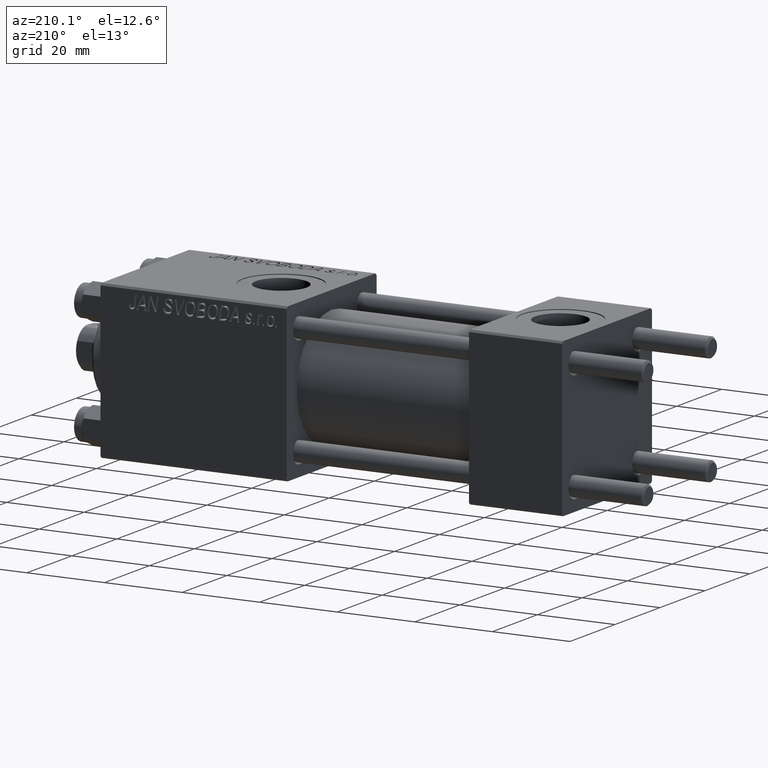
[diagram: clean part render]
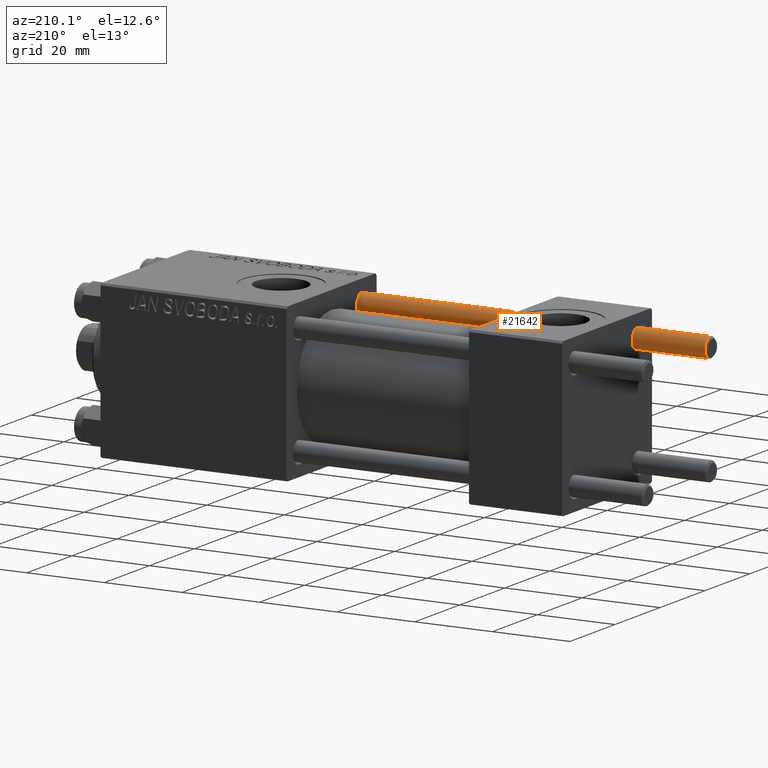
[diagram: same view with one face highlighted and labeled with its STEP entity id]
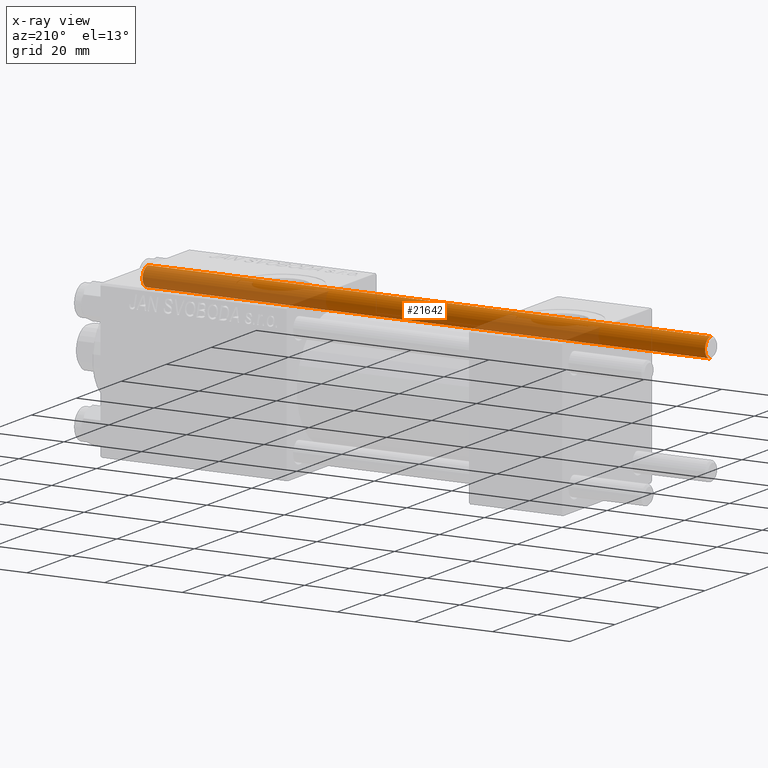
[diagram: x-ray of the same camera — body ghosted, the highlighted face saturated]
A machine part, auxiliary view. The second image highlights one B-rep face of the part: STEP entity #21642.
The next image is the same camera in x-ray: the body ghosted, the highlighted face saturated — about 41% of this face is hidden behind the body in this view.
In plain terms, the highlighted cylindrical surface (edge-blend (fillet) strip) has radius 2.5 mm, axis along (1, -0, 0).
Its self-contained STEP definition (entity closure, byte-faithful):
#357 = DIRECTION ( 'NONE',  ( -0.000000000000000000, -0.000000000000000000, 1.000000000000000000 ) ) ;
#480 = CARTESIAN_POINT ( 'NONE',  ( 2.500000000000000000, 3.061616997868383141E-16, 0.5000000000000559552 ) ) ;
#2121 = AXIS2_PLACEMENT_3D ( 'NONE', #16573, #13295, #32676 ) ;
#6746 = AXIS2_PLACEMENT_3D ( 'NONE', #12002, #35411, #42956 ) ;
#7728 = FACE_OUTER_BOUND ( 'NONE', #10321, .T. ) ;
#8121 = LINE ( 'NONE', #47146, #9843 ) ;
#8482 = ORIENTED_EDGE ( 'NONE', *, *, #48293, .F. ) ;
#9843 = VECTOR ( 'NONE', #24231, 1000.000000000000000 ) ;
#10321 = EDGE_LOOP ( 'NONE', ( #8482, #21373, #24157, #30590 ) ) ;
#12002 = CARTESIAN_POINT ( 'NONE',  ( 0.000000000000000000, 0.000000000000000000, 146.0000000000000000 ) ) ;
#12769 = EDGE_CURVE ( 'NONE', #22203, #38321, #39100, .T. ) ;
#13295 = DIRECTION ( 'NONE',  ( 0.000000000000000000, 0.000000000000000000, -1.000000000000000000 ) ) ;
#15721 = DIRECTION ( 'NONE',  ( 1.000000000000000000, 0.000000000000000000, 0.000000000000000000 ) ) ;
#15973 = DIRECTION ( 'NONE',  ( -0.000000000000000000, -0.000000000000000000, -1.000000000000000000 ) ) ;
#16217 = CARTESIAN_POINT ( 'NONE',  ( -2.500000000000000000, 0.000000000000000000, 146.0000000000000000 ) ) ;
#16573 = CARTESIAN_POINT ( 'NONE',  ( 0.000000000000000000, 0.000000000000000000, 145.5000000000000284 ) ) ;
#16647 = VERTEX_POINT ( 'NONE', #480 ) ;
#19187 = CARTESIAN_POINT ( 'NONE',  ( 2.500000000000000000, 3.061616997868383141E-16, 145.5000000000000284 ) ) ;
#19493 = CARTESIAN_POINT ( 'NONE',  ( 0.000000000000000000, 0.000000000000000000, 0.5000000000000559552 ) ) ;
#19754 = LINE ( 'NONE', #16217, #47292 ) ;
#21373 = ORIENTED_EDGE ( 'NONE', *, *, #12769, .T. ) ;
#21642 = ADVANCED_FACE ( 'NONE', ( #7728 ), #23078, .T. ) ;
#22203 = VERTEX_POINT ( 'NONE', #19187 ) ;
#23078 = CYLINDRICAL_SURFACE ( 'NONE', #6746, 2.500000000000000000 ) ;
#24157 = ORIENTED_EDGE ( 'NONE', *, *, #34956, .T. ) ;
#24231 = DIRECTION ( 'NONE',  ( -0.000000000000000000, -0.000000000000000000, -1.000000000000000000 ) ) ;
#30590 = ORIENTED_EDGE ( 'NONE', *, *, #45775, .T. ) ;
#32420 = CARTESIAN_POINT ( 'NONE',  ( -2.500000000000000000, 0.000000000000000000, 145.5000000000000284 ) ) ;
#32676 = DIRECTION ( 'NONE',  ( 1.000000000000000000, 0.000000000000000000, 0.000000000000000000 ) ) ;
#33364 = CARTESIAN_POINT ( 'NONE',  ( -2.500000000000000000, 0.000000000000000000, 0.5000000000000559552 ) ) ;
#34956 = EDGE_CURVE ( 'NONE', #38321, #45550, #19754, .T. ) ;
#35411 = DIRECTION ( 'NONE',  ( -0.000000000000000000, -0.000000000000000000, -1.000000000000000000 ) ) ;
#37896 = CIRCLE ( 'NONE', #43553, 2.500000000000000000 ) ;
#38321 = VERTEX_POINT ( 'NONE', #32420 ) ;
#39100 = CIRCLE ( 'NONE', #2121, 2.500000000000000000 ) ;
#42956 = DIRECTION ( 'NONE',  ( -1.000000000000000000, 0.000000000000000000, 0.000000000000000000 ) ) ;
#43553 = AXIS2_PLACEMENT_3D ( 'NONE', #19493, #357, #15721 ) ;
#45550 = VERTEX_POINT ( 'NONE', #33364 ) ;
#45775 = EDGE_CURVE ( 'NONE', #45550, #16647, #37896, .T. ) ;
#47146 = CARTESIAN_POINT ( 'NONE',  ( 2.500000000000000000, 3.061616997868383141E-16, 146.0000000000000000 ) ) ;
#47292 = VECTOR ( 'NONE', #15973, 1000.000000000000000 ) ;
#48293 = EDGE_CURVE ( 'NONE', #22203, #16647, #8121, .T. ) ;